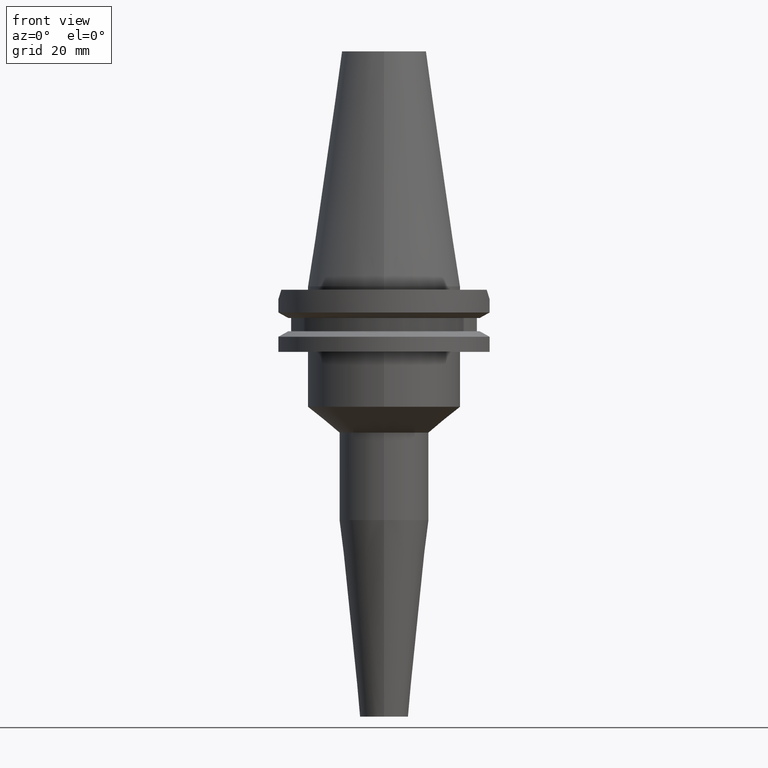
[diagram: clean part render]
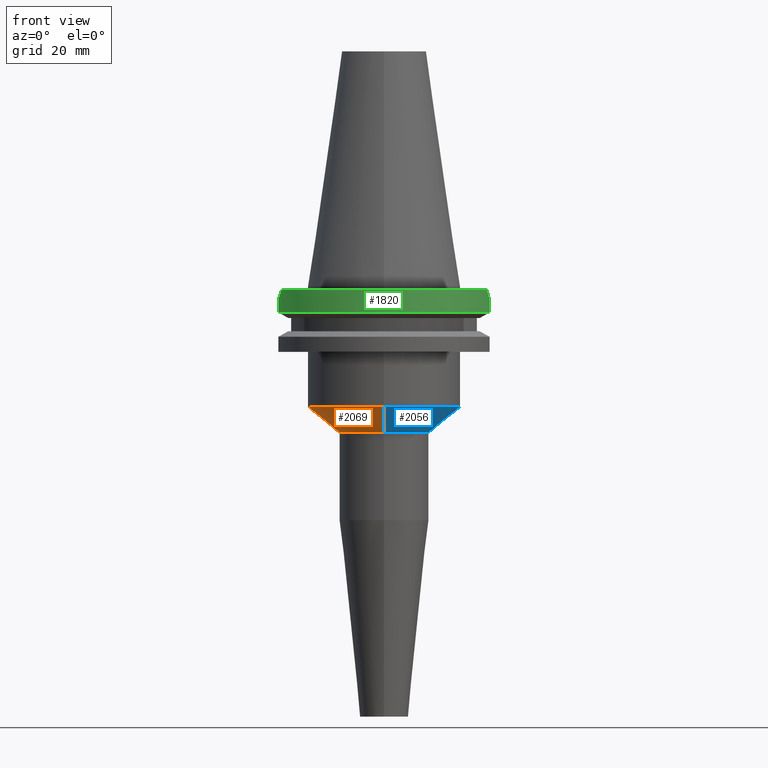
[diagram: same view with three faces highlighted in distinct colors, each labeled with its STEP entity id]
A machine part, front view with three faces highlighted in distinct colors.
Their STEP definitions:

[orange] entity #2069 — the highlighted conical surface has half-angle 50.937 deg.
#862=DIRECTION('',(0.E0,-7.764535178903E-1,-6.301745270603E-1));
#863=VECTOR('',#862,1.188094301519E1);
#864=CARTESIAN_POINT('',(0.E0,2.2225E1,-3.5E1));
#865=LINE('',#864,#863);
#885=CARTESIAN_POINT('',(0.E0,0.E0,-3.5E1));
#886=DIRECTION('',(0.E0,0.E0,1.E0));
#887=DIRECTION('',(0.E0,1.E0,0.E0));
#888=AXIS2_PLACEMENT_3D('',#885,#886,#887);
#893=DIRECTION('',(0.E0,7.764535178903E-1,-6.301745270603E-1));
#894=VECTOR('',#893,1.188094301519E1);
#895=CARTESIAN_POINT('',(0.E0,-2.2225E1,-3.5E1));
#896=LINE('',#895,#894);
#900=CARTESIAN_POINT('',(0.E0,0.E0,-4.248706764563E1));
#901=DIRECTION('',(0.E0,0.E0,-1.E0));
#902=DIRECTION('',(0.E0,-1.E0,0.E0));
#903=AXIS2_PLACEMENT_3D('',#900,#901,#902);
#1268=CARTESIAN_POINT('',(0.E0,1.3E1,-4.248706764563E1));
#1269=VERTEX_POINT('',#1268);
#1270=CARTESIAN_POINT('',(0.E0,-1.3E1,-4.248706764563E1));
#1271=VERTEX_POINT('',#1270);
#1272=CARTESIAN_POINT('',(0.E0,2.2225E1,-3.5E1));
#1273=VERTEX_POINT('',#1272);
#1274=CARTESIAN_POINT('',(0.E0,-2.2225E1,-3.5E1));
#1275=VERTEX_POINT('',#1274);
#2057=CARTESIAN_POINT('',(0.E0,0.E0,-3.874353382281E1));
#2058=DIRECTION('',(0.E0,0.E0,1.E0));
#2059=DIRECTION('',(0.E0,1.E0,0.E0));
#2060=AXIS2_PLACEMENT_3D('',#2057,#2058,#2059);
#2061=CONICAL_SURFACE('',#2060,1.76125E1,5.0937E1);
#2062=ORIENTED_EDGE('',*,*,#2047,.F.);
#2063=ORIENTED_EDGE('',*,*,#2024,.T.);
#2064=ORIENTED_EDGE('',*,*,#2051,.T.);
#2066=ORIENTED_EDGE('',*,*,#2065,.T.);
#2067=EDGE_LOOP('',(#2062,#2063,#2064,#2066));
#2068=FACE_OUTER_BOUND('',#2067,.F.);
#889=CIRCLE('',#888,2.2225E1);
#904=CIRCLE('',#903,1.3E1);
#2024=EDGE_CURVE('',#1273,#1275,#889,.T.);
#2047=EDGE_CURVE('',#1273,#1269,#865,.T.);
#2051=EDGE_CURVE('',#1275,#1271,#896,.T.);
#2065=EDGE_CURVE('',#1271,#1269,#904,.T.);
#2069=ADVANCED_FACE('',(#2068),#2061,.T.);

[blue] entity #2056 — the highlighted conical surface has half-angle 50.937 deg.
#862=DIRECTION('',(0.E0,-7.764535178903E-1,-6.301745270603E-1));
#863=VECTOR('',#862,1.188094301519E1);
#864=CARTESIAN_POINT('',(0.E0,2.2225E1,-3.5E1));
#865=LINE('',#864,#863);
#869=CARTESIAN_POINT('',(0.E0,0.E0,-4.248706764563E1));
#870=DIRECTION('',(0.E0,0.E0,-1.E0));
#871=DIRECTION('',(0.E0,1.E0,0.E0));
#872=AXIS2_PLACEMENT_3D('',#869,#870,#871);
#877=CARTESIAN_POINT('',(0.E0,0.E0,-3.5E1));
#878=DIRECTION('',(0.E0,0.E0,1.E0));
#879=DIRECTION('',(0.E0,-1.E0,0.E0));
#880=AXIS2_PLACEMENT_3D('',#877,#878,#879);
#893=DIRECTION('',(0.E0,7.764535178903E-1,-6.301745270603E-1));
#894=VECTOR('',#893,1.188094301519E1);
#895=CARTESIAN_POINT('',(0.E0,-2.2225E1,-3.5E1));
#896=LINE('',#895,#894);
#1268=CARTESIAN_POINT('',(0.E0,1.3E1,-4.248706764563E1));
#1269=VERTEX_POINT('',#1268);
#1270=CARTESIAN_POINT('',(0.E0,-1.3E1,-4.248706764563E1));
#1271=VERTEX_POINT('',#1270);
#1272=CARTESIAN_POINT('',(0.E0,2.2225E1,-3.5E1));
#1273=VERTEX_POINT('',#1272);
#1274=CARTESIAN_POINT('',(0.E0,-2.2225E1,-3.5E1));
#1275=VERTEX_POINT('',#1274);
#2042=CARTESIAN_POINT('',(0.E0,0.E0,-3.874353382281E1));
#2043=DIRECTION('',(0.E0,0.E0,1.E0));
#2044=DIRECTION('',(0.E0,1.E0,0.E0));
#2045=AXIS2_PLACEMENT_3D('',#2042,#2043,#2044);
#2046=CONICAL_SURFACE('',#2045,1.76125E1,5.0937E1);
#2048=ORIENTED_EDGE('',*,*,#2047,.T.);
#2050=ORIENTED_EDGE('',*,*,#2049,.T.);
#2052=ORIENTED_EDGE('',*,*,#2051,.F.);
#2053=ORIENTED_EDGE('',*,*,#2035,.T.);
#2054=EDGE_LOOP('',(#2048,#2050,#2052,#2053));
#2055=FACE_OUTER_BOUND('',#2054,.F.);
#873=CIRCLE('',#872,1.3E1);
#881=CIRCLE('',#880,2.2225E1);
#2035=EDGE_CURVE('',#1275,#1273,#881,.T.);
#2047=EDGE_CURVE('',#1273,#1269,#865,.T.);
#2049=EDGE_CURVE('',#1269,#1271,#873,.T.);
#2051=EDGE_CURVE('',#1275,#1271,#896,.T.);
#2056=ADVANCED_FACE('',(#2055),#2046,.T.);

[green] entity #1820 — the highlighted cylindrical surface (partial cylindrical patch) has radius 31.75 mm, axis along (0, 0, -1).
#108=CARTESIAN_POINT('',(0.E0,2.178799736533E-14,-1.E0));
#109=DIRECTION('',(0.E0,0.E0,-1.E0));
#110=DIRECTION('',(9.393382785306E-1,-3.429921259843E-1,0.E0));
#111=AXIS2_PLACEMENT_3D('',#108,#109,#110);
#116=CARTESIAN_POINT('',(0.E0,2.178799736533E-14,-1.E0));
#117=DIRECTION('',(0.E0,0.E0,-1.E0));
#118=DIRECTION('',(0.E0,-1.E0,0.E0));
#119=AXIS2_PLACEMENT_3D('',#116,#117,#118);
#575=CARTESIAN_POINT('',(2.982399034335E1,-1.089E1,-1.000000000001E0));
#576=CARTESIAN_POINT('',(3.015017741992E1,-9.996685011754E0,-1.893314988246E0));
#577=CARTESIAN_POINT('',(3.043345108244E1,-9.096596073173E0,-2.793403926827E0));
#578=CARTESIAN_POINT('',(3.067550162589E1,-8.19E0,-3.7E0));
#583=DIRECTION('',(-4.149952334243E-8,-1.554361652636E-7,-1.E0));
#584=VECTOR('',#583,3.901327811715E0);
#585=CARTESIAN_POINT('',(3.067550162589E1,-8.19E0,-3.7E0));
#586=LINE('',#585,#584);
#590=DIRECTION('',(8.604053470649E-9,-3.222588451522E-8,1.E0));
#591=VECTOR('',#590,3.901334354445E0);
#592=CARTESIAN_POINT('',(-3.067550165946E1,-8.189999874276E0,
-7.601334354445E0));
#593=LINE('',#592,#591);
#597=CARTESIAN_POINT('',(-3.067550162589E1,-8.19E0,-3.7E0));
#598=CARTESIAN_POINT('',(-3.043345108244E1,-9.096596073173E0,
-2.793403926827E0));
#599=CARTESIAN_POINT('',(-3.015017741992E1,-9.996685011754E0,
-1.893314988246E0));
#600=CARTESIAN_POINT('',(-2.982399034335E1,-1.089E1,-1.000000000001E0));
#624=CARTESIAN_POINT('',(3.067550146399E1,-8.190000606407E0,-7.601327811715E0));
#674=CARTESIAN_POINT('',(0.E0,1.121722380079E-14,-7.601333230926E0));
#675=DIRECTION('',(0.E0,0.E0,1.E0));
#676=DIRECTION('',(-9.661575315241E-1,-2.579527559055E-1,0.E0));
#677=AXIS2_PLACEMENT_3D('',#674,#675,#676);
#682=CARTESIAN_POINT('',(0.E0,1.121722380079E-14,-7.601333230926E0));
#683=DIRECTION('',(0.E0,0.E0,1.E0));
#684=DIRECTION('',(0.E0,-1.E0,0.E0));
#685=AXIS2_PLACEMENT_3D('',#682,#683,#684);
#1317=VERTEX_POINT('',#624);
#1318=CARTESIAN_POINT('',(3.067550162589E1,-8.19E0,-3.7E0));
#1319=VERTEX_POINT('',#1318);
#1332=CARTESIAN_POINT('',(-3.067550162589E1,-8.19E0,-3.7E0));
#1333=VERTEX_POINT('',#1332);
#1334=CARTESIAN_POINT('',(-3.067550165946E1,-8.189999874276E0,
-7.601334354445E0));
#1335=VERTEX_POINT('',#1334);
#1386=CARTESIAN_POINT('',(0.E0,-3.175E1,-7.601333230926E0));
#1387=VERTEX_POINT('',#1386);
#1391=VERTEX_POINT('',#575);
#1392=VERTEX_POINT('',#600);
#1393=CARTESIAN_POINT('',(-1.432899828923E-14,-3.175E1,-1.E0));
#1394=VERTEX_POINT('',#1393);
#1800=CARTESIAN_POINT('',(0.E0,2.178799736533E-14,7.79125E1));
#1801=DIRECTION('',(0.E0,0.E0,-1.E0));
#1802=DIRECTION('',(0.E0,-1.E0,0.E0));
#1803=AXIS2_PLACEMENT_3D('',#1800,#1801,#1802);
#1804=CYLINDRICAL_SURFACE('',#1803,3.175E1);
#1806=ORIENTED_EDGE('',*,*,#1805,.T.);
#1808=ORIENTED_EDGE('',*,*,#1807,.T.);
#1810=ORIENTED_EDGE('',*,*,#1809,.F.);
#1812=ORIENTED_EDGE('',*,*,#1811,.F.);
#1814=ORIENTED_EDGE('',*,*,#1813,.T.);
#1815=ORIENTED_EDGE('',*,*,#1792,.T.);
#1816=ORIENTED_EDGE('',*,*,#1499,.F.);
#1817=ORIENTED_EDGE('',*,*,#1497,.F.);
#1818=EDGE_LOOP('',(#1806,#1808,#1810,#1812,#1814,#1815,#1816,#1817));
#1819=FACE_OUTER_BOUND('',#1818,.F.);
#112=CIRCLE('',#111,3.175E1);
#120=CIRCLE('',#119,3.175E1);
#579=B_SPLINE_CURVE_WITH_KNOTS('',3,(#575,#576,#577,#578),.UNSPECIFIED.,.F.,.F.,
(4,4),(0.E0,1.E0),.UNSPECIFIED.);
#601=B_SPLINE_CURVE_WITH_KNOTS('',3,(#597,#598,#599,#600),.UNSPECIFIED.,.F.,.F.,
(4,4),(0.E0,1.E0),.UNSPECIFIED.);
#678=CIRCLE('',#677,3.175E1);
#686=CIRCLE('',#685,3.175E1);
#1497=EDGE_CURVE('',#1391,#1394,#112,.T.);
#1499=EDGE_CURVE('',#1394,#1392,#120,.T.);
#1792=EDGE_CURVE('',#1333,#1392,#601,.T.);
#1805=EDGE_CURVE('',#1391,#1319,#579,.T.);
#1807=EDGE_CURVE('',#1319,#1317,#586,.T.);
#1809=EDGE_CURVE('',#1387,#1317,#686,.T.);
#1811=EDGE_CURVE('',#1335,#1387,#678,.T.);
#1813=EDGE_CURVE('',#1335,#1333,#593,.T.);
#1820=ADVANCED_FACE('',(#1819),#1804,.T.);